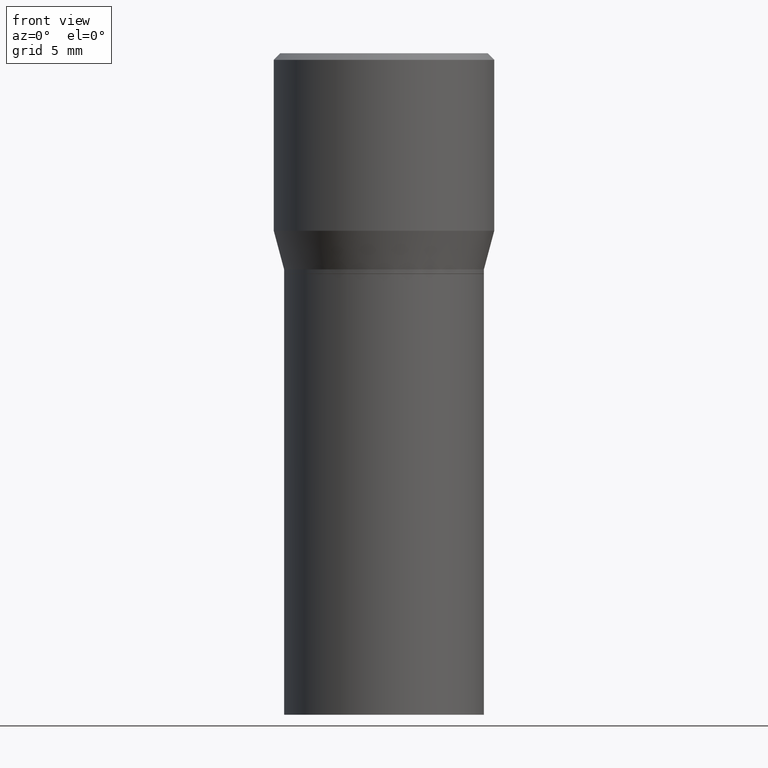
[diagram: clean part render]
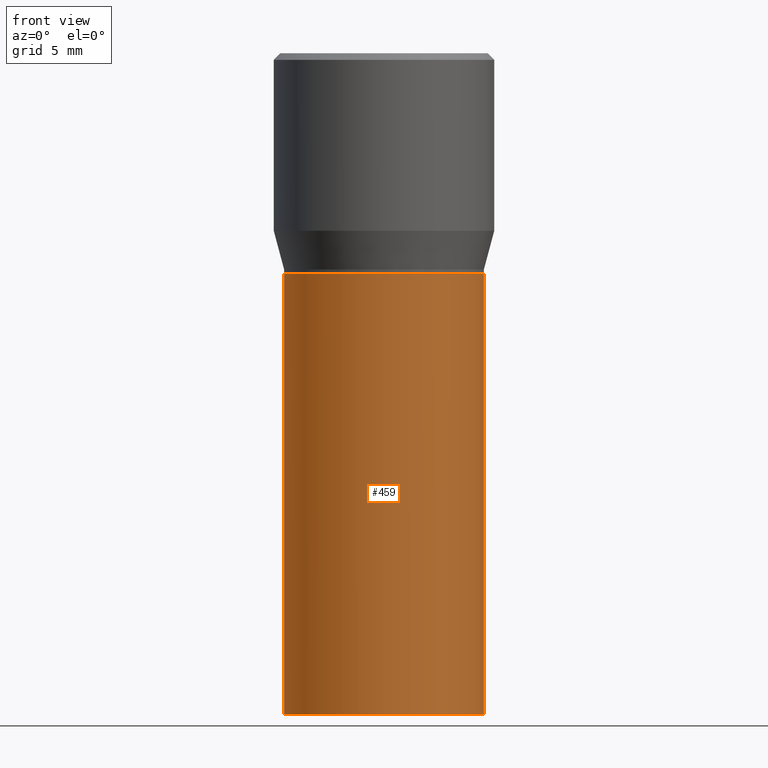
[diagram: same view with one face highlighted and labeled with its STEP entity id]
A machine part, front view. The second image highlights one B-rep face of the part: STEP entity #459.
In plain terms, the highlighted cylindrical surface (partial cylindrical patch) has radius 5.7544 mm, axis along (-0, 0, 1).
Its self-contained STEP definition (entity closure, byte-faithful):
#2 = DIRECTION ( 'NONE',  ( 1.000000000000000000, -6.982962677686267499E-15, 0.000000000000000000 ) ) ;
#14 = DIRECTION ( 'NONE',  ( 1.000000000000000000, -6.982962677686266711E-15, 4.876176775795935793E-29 ) ) ;
#24 = CIRCLE ( 'NONE', #287, 0.2265500000000000014 ) ;
#32 = AXIS2_PLACEMENT_3D ( 'NONE', #376, #304, #14 ) ;
#35 = CARTESIAN_POINT ( 'NONE',  ( 3.668203209277704895E-29, -5.237222008264718177E-15, -1.500000000000000222 ) ) ;
#75 = CARTESIAN_POINT ( 'NONE',  ( -0.2265500000000000014, 1.609734567864506981E-15, -1.114384744697248863E-29 ) ) ;
#115 = CARTESIAN_POINT ( 'NONE',  ( 0.2265500000000000014, -3.327730864051397109E-15, -0.5000000000000001110 ) ) ;
#118 = CARTESIAN_POINT ( 'NONE',  ( 0.2265500000000000014, -1.581990194629823726E-15, 1.104697848556569281E-29 ) ) ;
#128 = VERTEX_POINT ( 'NONE', #175 ) ;
#175 = CARTESIAN_POINT ( 'NONE',  ( -0.2265500000000000014, -1.881746770978639193E-15, -0.5000000000000001110 ) ) ;
#182 = CARTESIAN_POINT ( 'NONE',  ( -0.2265500000000000014, -1.881746770978639193E-15, -1.500000000000000222 ) ) ;
#183 = CARTESIAN_POINT ( 'NONE',  ( 0.2265500000000000014, -6.819212202894542298E-15, -1.500000000000000222 ) ) ;
#217 = EDGE_CURVE ( 'NONE', #128, #285, #24, .T. ) ;
#236 = CYLINDRICAL_SURFACE ( 'NONE', #32, 0.2265500000000000014 ) ;
#238 = EDGE_CURVE ( 'NONE', #289, #285, #395, .T. ) ;
#248 = EDGE_LOOP ( 'NONE', ( #353, #424, #415, #317 ) ) ;
#258 = VERTEX_POINT ( 'NONE', #182 ) ;
#263 = CARTESIAN_POINT ( 'NONE',  ( 1.222734403092568719E-29, -1.745740669421573186E-15, -0.5000000000000001110 ) ) ;
#264 = EDGE_CURVE ( 'NONE', #258, #289, #426, .T. ) ;
#285 = VERTEX_POINT ( 'NONE', #115 ) ;
#287 = AXIS2_PLACEMENT_3D ( 'NONE', #263, #431, #299 ) ;
#289 = VERTEX_POINT ( 'NONE', #183 ) ;
#290 = EDGE_CURVE ( 'NONE', #258, #128, #333, .T. ) ;
#293 = DIRECTION ( 'NONE',  ( -2.445468806185136877E-29, 3.491481338843145188E-15, 1.000000000000000000 ) ) ;
#299 = DIRECTION ( 'NONE',  ( 1.000000000000000000, -6.982962677686266711E-15, 0.000000000000000000 ) ) ;
#304 = DIRECTION ( 'NONE',  ( -2.445468806185136597E-29, 3.491481338843145583E-15, 1.000000000000000000 ) ) ;
#317 = ORIENTED_EDGE ( 'NONE', *, *, #217, .F. ) ;
#333 = LINE ( 'NONE', #75, #436 ) ;
#335 = DIRECTION ( 'NONE',  ( -2.445468806185136877E-29, 3.491481338843145188E-15, 1.000000000000000000 ) ) ;
#353 = ORIENTED_EDGE ( 'NONE', *, *, #290, .F. ) ;
#363 = DIRECTION ( 'NONE',  ( -2.445468806185136597E-29, 3.491481338843145583E-15, 1.000000000000000000 ) ) ;
#376 = CARTESIAN_POINT ( 'NONE',  ( 0.000000000000000000, 0.000000000000000000, 0.000000000000000000 ) ) ;
#395 = LINE ( 'NONE', #118, #413 ) ;
#400 = AXIS2_PLACEMENT_3D ( 'NONE', #35, #363, #2 ) ;
#404 = FACE_OUTER_BOUND ( 'NONE', #248, .T. ) ;
#413 = VECTOR ( 'NONE', #293, 39.37007874015748143 ) ;
#415 = ORIENTED_EDGE ( 'NONE', *, *, #238, .T. ) ;
#424 = ORIENTED_EDGE ( 'NONE', *, *, #264, .T. ) ;
#426 = CIRCLE ( 'NONE', #400, 0.2265500000000000014 ) ;
#431 = DIRECTION ( 'NONE',  ( -2.445468806185136597E-29, 3.491481338843145583E-15, 1.000000000000000000 ) ) ;
#436 = VECTOR ( 'NONE', #335, 39.37007874015748143 ) ;
#459 = ADVANCED_FACE ( 'NONE', ( #404 ), #236, .T. ) ;